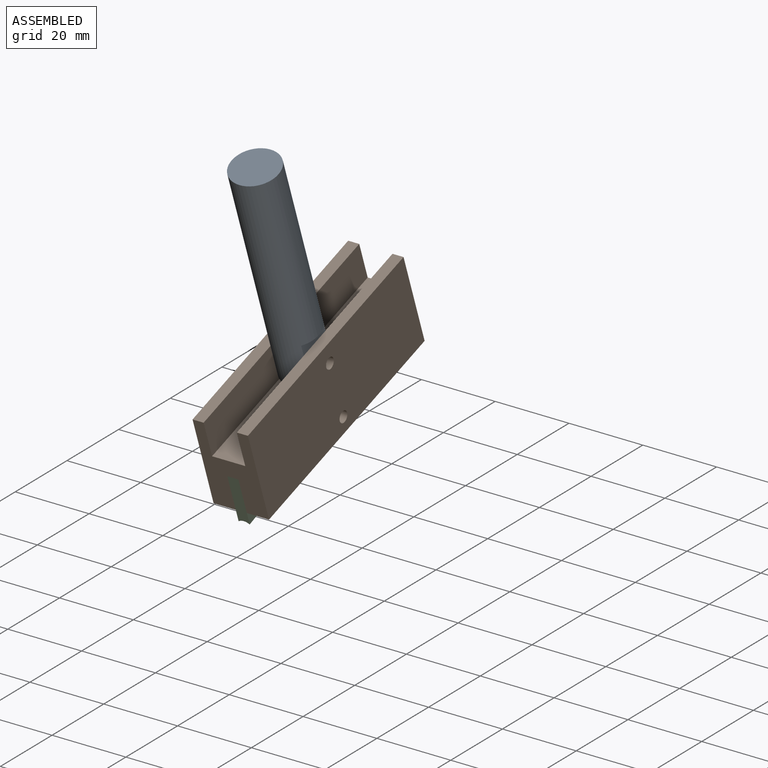
[diagram: assembled view]
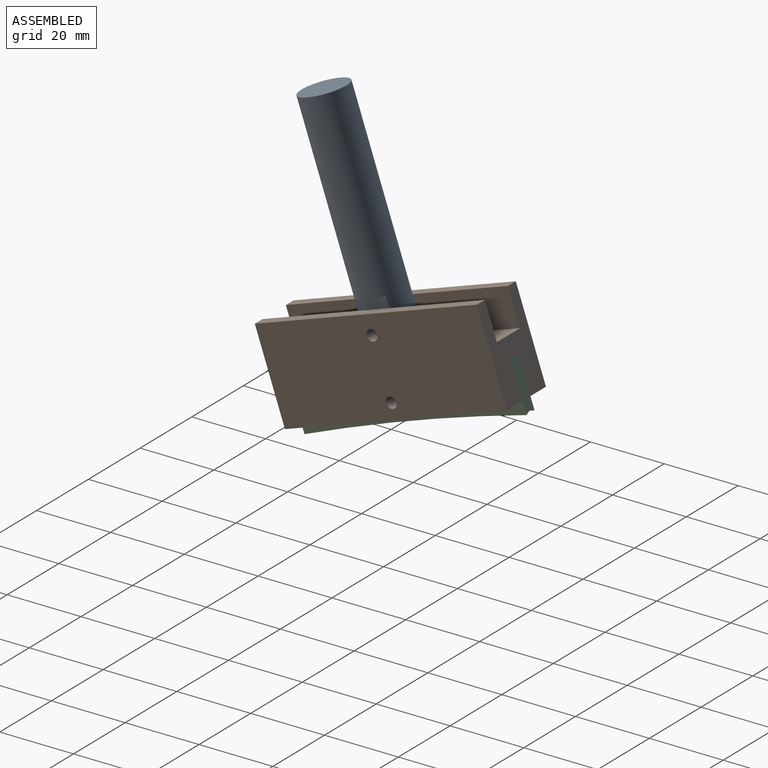
[diagram: assembled view, second angle]
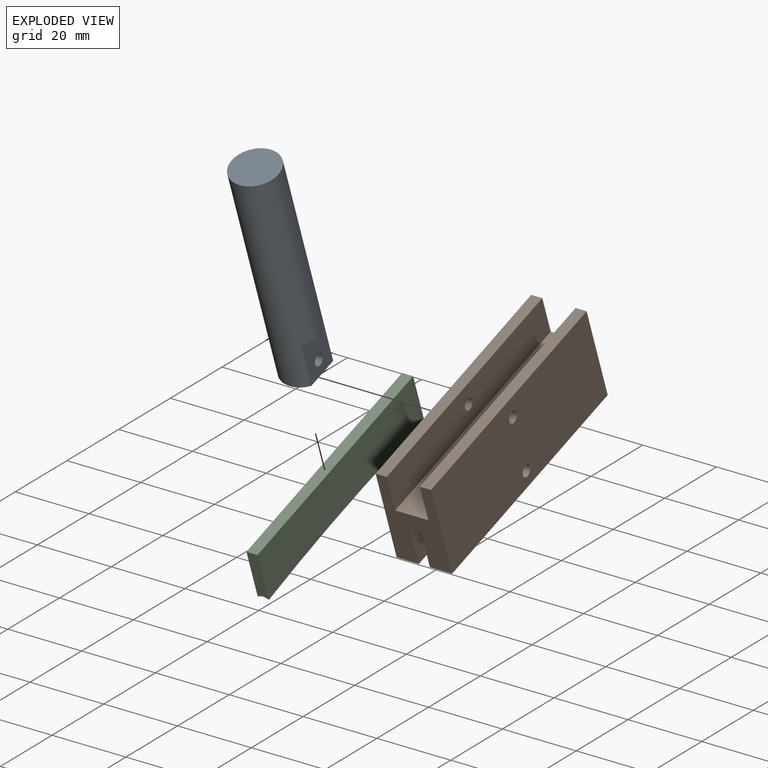
[diagram: exploded view]
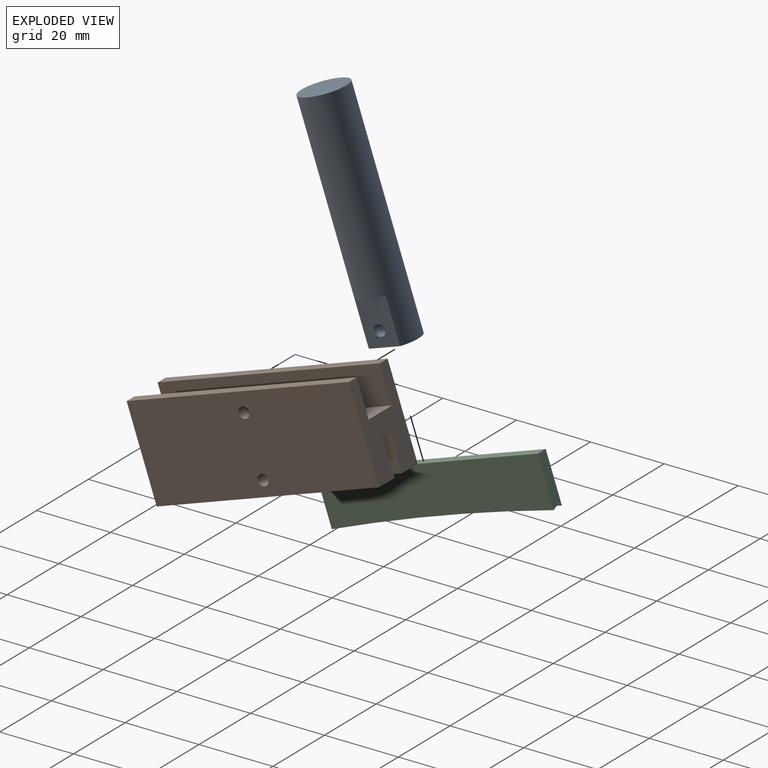
[diagram: exploded view, second angle]
ASSEMBLY  parts=3 mates=2
PART A: 8 faces, bbox 12.7x60x12.7 mm
  f0: cylinder r=6.35mm len=60mm, axis (0,-1,0), area 2155.2mm2, adj f1,f2,f3,f4,f5,f6
  f1: plane 12.7x9mm, normal (0,1,0), area 103.8mm2, adj f0,f3,f5
  f2: plane 12.7x12.7mm, normal (0,-1,0), area 126.7mm2, adj f0
  f3: plane 12x8.96mm, normal (-1,0,0), area 100.5mm2, adj f0,f1,f4,f7
  f4: plane 8.96x1.85mm, normal (0,1,0), area 11.4mm2, adj f0,f3
  f5: plane 12x8.96mm, normal (1,0,0), area 100.5mm2, adj f0,f1,f6,f7
  f6: plane 8.96x1.85mm, normal (0,1,0), area 11.4mm2, adj f0,f5
  f7: cylinder r=1.5mm len=9mm, axis (1,0,0), area 84.8mm2, adj f3,f5
PART B: 17 faces, bbox 15x63.7x25 mm
  f0: plane 63.7x6mm, normal (0,0,-1), area 382.2mm2, adj f1,f11,f12,f13
  f1: plane 63.7x25mm, normal (1,0,0), area 1578.4mm2, adj f0,f2,f12,f13,f15,f16
  f2: plane 63.7x3mm, normal (0,0,1), area 191.1mm2, adj f1,f3,f12,f13
  f3: plane 63.7x10mm, normal (-1,0,0), area 629.9mm2, adj f2,f4,f12,f13,f15
  f4: plane 63.7x9mm, normal (0,0,1), area 573.3mm2, adj f3,f5,f12,f13
  f5: plane 63.7x10mm, normal (1,0,0), area 629.9mm2, adj f4,f6,f12,f13,f14
  f6: plane 63.7x3mm, normal (0,0,1), area 191.1mm2, adj f5,f7,f12,f13
  f7: plane 63.7x25mm, normal (-1,0,0), area 1585.4mm2, adj f6,f8,f12,f13,f14
  f8: plane 63.7x6mm, normal (0,0,-1), area 382.2mm2, adj f7,f9,f12,f13
  f9: plane 63.7x10mm, normal (1,0,0), area 637mm2, adj f8,f10,f12,f13
  f10: plane 63.7x3mm, normal (0,0,-1), area 191.1mm2, adj f9,f11,f12,f13
  f11: plane 63.7x10mm, normal (-1,0,0), area 629.9mm2, adj f0,f10,f12,f13,f16
  f12: plane 25x15mm, normal (0,1,0), area 255mm2, adj f0,f1,f2,f3,f4,f5,f6,f7
  f13: plane 25x15mm, normal (0,-1,0), area 255mm2, adj f0,f1,f2,f3,f4,f5,f6,f7
  f14: cylinder r=1.5mm len=3mm, axis (1,0,0), area 28.3mm2, adj f5,f7
  f15: cylinder r=1.5mm len=3mm, axis (1,0,0), area 28.3mm2, adj f1,f3
  f16: cylinder r=1.5mm len=6mm, axis (1,0,0), area 56.5mm2, adj f1,f11
PART C: 6 faces, bbox 63.8x3x13.4 mm
  f0: plane 13.4x3mm, normal (-1,0,0), area 39.2mm2, adj f2,f3,f4,f5
  f1: plane 13.4x3mm, normal (1,0,0), area 39.2mm2, adj f2,f3,f4,f5
  f2: plane 63.7x3mm, normal (0,0,1), area 191.1mm2, adj f0,f1,f3,f4
  f3: plane 63.71x13.41mm, normal (0,-1,0), area 811.1mm2, adj f0,f1,f2,f5
  f4: plane 63.71x13.41mm, normal (0,1,0), area 811.1mm2, adj f0,f1,f2,f5
  f5: bspline ~63.76x3mm, area 205mm2, adj f0,f1,f3,f4
PLACE A rot(axis=(-1,0,0),71deg) t=(36.31,15.26,60.87)mm
PLACE B rot(axis=(1,0,0),19deg) t=(28.81,9.94,-21.37)mm
PLACE C rot(axis=(0.16,0.16,-0.97),91.6deg) t=(37.81,71.27,-3.8)mm
MATE fastened C.f2 <-> B.f10  axis (0,-0.33,0.95) through (36.31,36.79,-1.52)mm
MATE revolute A.f7 <-> B.f14  axis (1,0,0) through (31.81,33.53,7.93)mm
